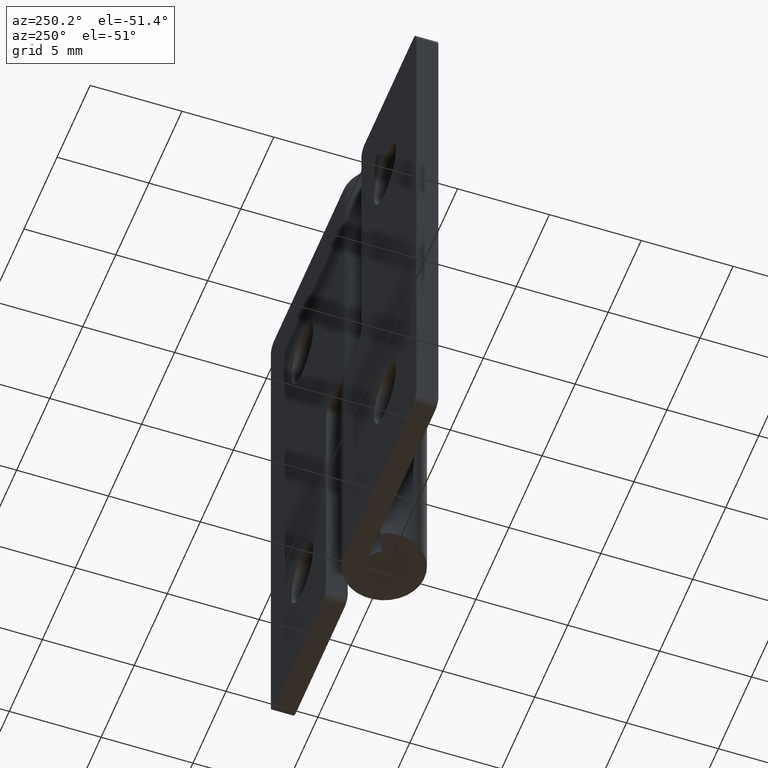
[diagram: clean part render]
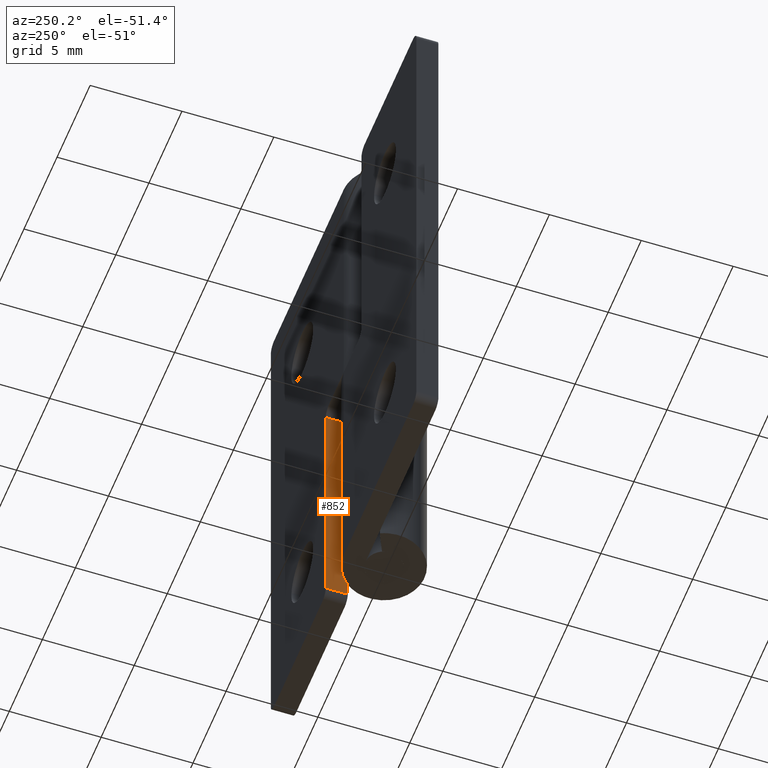
[diagram: same view with one face highlighted and labeled with its STEP entity id]
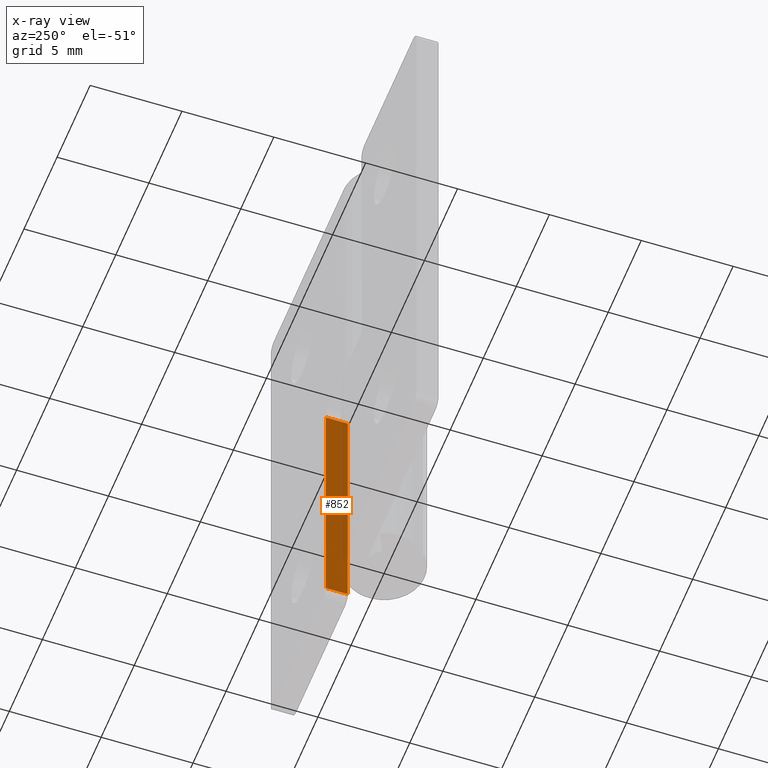
[diagram: x-ray of the same camera — body ghosted, the highlighted face saturated]
A machine part, auxiliary view. The second image highlights one B-rep face of the part: STEP entity #852.
The next image is the same camera in x-ray: the body ghosted, the highlighted face saturated — about 20% of this face is hidden behind the body in this view.
In plain terms, the highlighted face is a freeform B-spline surface patch.
Its self-contained STEP definition (entity closure, byte-faithful):
#817=CARTESIAN_POINT('',(2.700004000000000,0.940059952375837,15.199299972865290));
#818=CARTESIAN_POINT('',(2.700004000000000,0.940059952375837,-0.199300348374531));
#819=CARTESIAN_POINT('',(2.700004000000000,2.259941079810648,15.199299972865290));
#820=CARTESIAN_POINT('',(2.700004000000000,2.259941079810648,-0.199300348374531));
#821=B_SPLINE_SURFACE_WITH_KNOTS('',1,1,((#817,#819),(#818,#820)),.UNSPECIFIED.,.F.,.F.,.U.,(2,2),(2,2),(0.0,15.398600321239810),(0.041708334948495,0.958291687403247),.UNSPECIFIED.);
#822=CARTESIAN_POINT('',(2.700004000000000,1.0,0.500000000000014));
#823=VERTEX_POINT('',#822);
#824=CARTESIAN_POINT('',(2.700004000000000,1.0,14.500000000000000));
#825=VERTEX_POINT('',#824);
#826=CARTESIAN_POINT('',(2.700004000000000,1.0,0.500000000000014));
#827=CARTESIAN_POINT('',(2.700004000000000,1.0,14.500000000000000));
#828=QUASI_UNIFORM_CURVE('',1,(#826,#827),.UNSPECIFIED.,.F.,.U.);
#829=EDGE_CURVE('',#823,#825,#828,.T.);
#830=ORIENTED_EDGE('',*,*,#829,.T.);
#831=CARTESIAN_POINT('',(2.700004000000000,2.200000999999950,14.500000000000000));
#832=VERTEX_POINT('',#831);
#833=CARTESIAN_POINT('',(2.700004000000000,2.200000999999950,14.500000000000000));
#834=CARTESIAN_POINT('',(2.700004000000000,1.0,14.500000000000000));
#835=QUASI_UNIFORM_CURVE('',1,(#833,#834),.UNSPECIFIED.,.F.,.U.);
#836=EDGE_CURVE('',#832,#825,#835,.T.);
#837=ORIENTED_EDGE('',*,*,#836,.F.);
#838=CARTESIAN_POINT('',(2.700004000000000,2.200000999999950,0.500000000000014));
#839=VERTEX_POINT('',#838);
#840=CARTESIAN_POINT('',(2.700004000000000,2.200000999999950,0.500000000000014));
#841=CARTESIAN_POINT('',(2.700004000000000,2.200000999999950,14.500000000000000));
#842=QUASI_UNIFORM_CURVE('',1,(#840,#841),.UNSPECIFIED.,.F.,.U.);
#843=EDGE_CURVE('',#839,#832,#842,.T.);
#844=ORIENTED_EDGE('',*,*,#843,.F.);
#845=CARTESIAN_POINT('',(2.700004000000000,2.200000999999950,0.500000000000014));
#846=CARTESIAN_POINT('',(2.700004000000000,1.0,0.500000000000014));
#847=QUASI_UNIFORM_CURVE('',1,(#845,#846),.UNSPECIFIED.,.F.,.U.);
#848=EDGE_CURVE('',#839,#823,#847,.T.);
#849=ORIENTED_EDGE('',*,*,#848,.T.);
#850=EDGE_LOOP('',(#830,#837,#844,#849));
#851=FACE_OUTER_BOUND('',#850,.T.);
#852=ADVANCED_FACE('',(#851),#821,.F.);